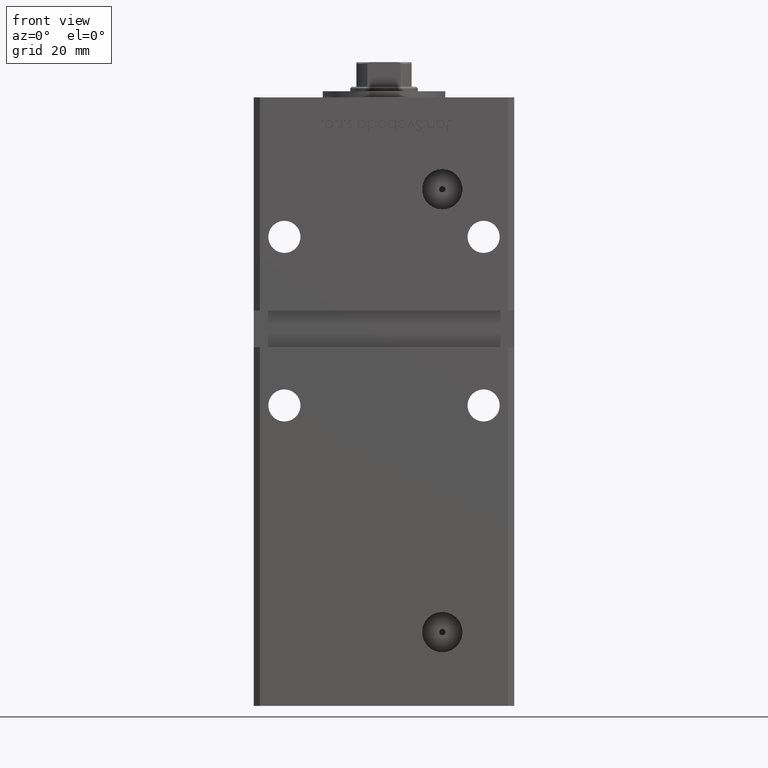
[diagram: clean part render]
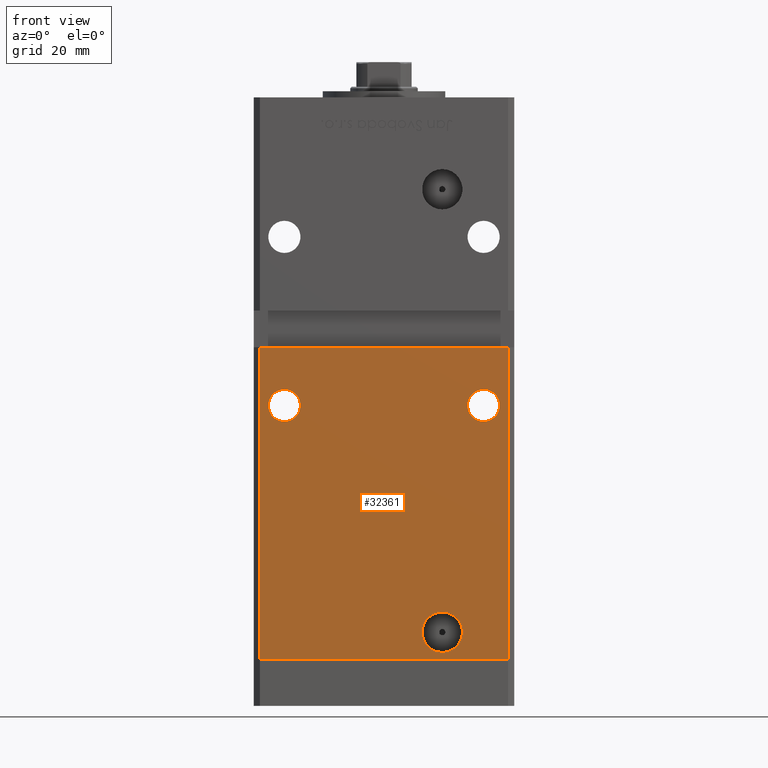
[diagram: same view with one face highlighted and labeled with its STEP entity id]
A machine part, front view. The second image highlights one B-rep face of the part: STEP entity #32361.
In plain terms, the highlighted planar face has unit normal (0, 1, 0).
Its self-contained STEP definition (entity closure, byte-faithful):
#87 = CIRCLE ( 'NONE', #46471, 5.250000000000004441 ) ;
#1092 = CARTESIAN_POINT ( 'NONE',  ( 32.50000000000000000, -37.50000000000000711, 83.00000000000001421 ) ) ;
#1167 = CIRCLE ( 'NONE', #5460, 6.579999999999998295 ) ;
#1610 = CARTESIAN_POINT ( 'NONE',  ( -32.50000000000000000, -37.50000000000000711, 83.00000000000001421 ) ) ;
#1747 = AXIS2_PLACEMENT_3D ( 'NONE', #1951, #30458, #33979 ) ;
#1770 = CIRCLE ( 'NONE', #29246, 5.249999999999991118 ) ;
#1951 = CARTESIAN_POINT ( 'NONE',  ( -32.50000000000000000, -37.50000000000000711, 83.00000000000001421 ) ) ;
#2108 = VERTEX_POINT ( 'NONE', #41853 ) ;
#2146 = DIRECTION ( 'NONE',  ( 1.000000000000000000, 0.000000000000000000, 0.000000000000000000 ) ) ;
#2401 = DIRECTION ( 'NONE',  ( 0.000000000000000000, -0.000000000000000000, 1.000000000000000000 ) ) ;
#2410 = CARTESIAN_POINT ( 'NONE',  ( -40.49999999999998579, -37.50000000000000711, 0.000000000000000000 ) ) ;
#2592 = CIRCLE ( 'NONE', #1747, 5.250000000000004441 ) ;
#2930 = EDGE_LOOP ( 'NONE', ( #29260, #29516 ) ) ;
#3488 = VECTOR ( 'NONE', #40048, 1000.000000000000000 ) ;
#3537 = DIRECTION ( 'NONE',  ( 0.000000000000000000, 0.000000000000000000, -1.000000000000000000 ) ) ;
#4321 = AXIS2_PLACEMENT_3D ( 'NONE', #51091, #27670, #2401 ) ;
#4773 = VERTEX_POINT ( 'NONE', #26086 ) ;
#5460 = AXIS2_PLACEMENT_3D ( 'NONE', #27991, #48980, #3537 ) ;
#6407 = VERTEX_POINT ( 'NONE', #46164 ) ;
#6418 = CARTESIAN_POINT ( 'NONE',  ( -40.49999999999998579, -37.50000000000000711, 0.000000000000000000 ) ) ;
#6759 = CARTESIAN_POINT ( 'NONE',  ( 32.50000000000000000, -37.50000000000000711, 88.25000000000001421 ) ) ;
#7535 = CARTESIAN_POINT ( 'NONE',  ( 40.49999999999998579, -37.50000000000000711, 0.000000000000000000 ) ) ;
#9054 = CARTESIAN_POINT ( 'NONE',  ( -32.50000000000000000, -37.50000000000000711, 77.75000000000001421 ) ) ;
#10476 = LINE ( 'NONE', #40060, #22931 ) ;
#10718 = ORIENTED_EDGE ( 'NONE', *, *, #18265, .T. ) ;
#10848 = EDGE_LOOP ( 'NONE', ( #49077, #27386 ) ) ;
#11515 = CARTESIAN_POINT ( 'NONE',  ( 40.49999999999998579, -37.50000000000000711, 168.5000000000000000 ) ) ;
#12383 = AXIS2_PLACEMENT_3D ( 'NONE', #34124, #33597, #50260 ) ;
#12639 = VECTOR ( 'NONE', #26746, 1000.000000000000000 ) ;
#12642 = ORIENTED_EDGE ( 'NONE', *, *, #23057, .F. ) ;
#13300 = VERTEX_POINT ( 'NONE', #33228 ) ;
#14692 = CIRCLE ( 'NONE', #18885, 6.579999999999998295 ) ;
#14919 = EDGE_CURVE ( 'NONE', #32019, #13300, #1770, .T. ) ;
#14929 = ORIENTED_EDGE ( 'NONE', *, *, #15067, .T. ) ;
#15067 = EDGE_CURVE ( 'NONE', #46323, #17349, #36021, .T. ) ;
#15109 = EDGE_CURVE ( 'NONE', #4773, #17349, #40577, .T. ) ;
#15830 = CIRCLE ( 'NONE', #12383, 5.249999999999991118 ) ;
#16616 = DIRECTION ( 'NONE',  ( -0.000000000000000000, -0.000000000000000000, -1.000000000000000000 ) ) ;
#17349 = VERTEX_POINT ( 'NONE', #7535 ) ;
#18265 = EDGE_CURVE ( 'NONE', #28333, #46323, #18942, .T. ) ;
#18885 = AXIS2_PLACEMENT_3D ( 'NONE', #37875, #38664, #45680 ) ;
#18942 = LINE ( 'NONE', #51508, #12639 ) ;
#22749 = ORIENTED_EDGE ( 'NONE', *, *, #46045, .F. ) ;
#22931 = VECTOR ( 'NONE', #2146, 1000.000000000000000 ) ;
#23057 = EDGE_CURVE ( 'NONE', #28333, #4773, #10476, .T. ) ;
#23099 = FACE_BOUND ( 'NONE', #2930, .T. ) ;
#26086 = CARTESIAN_POINT ( 'NONE',  ( 40.49999999999998579, -37.50000000000000711, 102.0000000000000142 ) ) ;
#26592 = EDGE_LOOP ( 'NONE', ( #31701, #12642, #10718, #14929 ) ) ;
#26746 = DIRECTION ( 'NONE',  ( -0.000000000000000000, -0.000000000000000000, -1.000000000000000000 ) ) ;
#27386 = ORIENTED_EDGE ( 'NONE', *, *, #34422, .T. ) ;
#27670 = DIRECTION ( 'NONE',  ( 0.000000000000000000, 1.000000000000000000, 0.000000000000000000 ) ) ;
#27991 = CARTESIAN_POINT ( 'NONE',  ( 18.99999999999998934, -37.50000000000000711, 9.000000000000007105 ) ) ;
#28333 = VERTEX_POINT ( 'NONE', #41757 ) ;
#29246 = AXIS2_PLACEMENT_3D ( 'NONE', #1092, #46777, #41709 ) ;
#29260 = ORIENTED_EDGE ( 'NONE', *, *, #14919, .T. ) ;
#29324 = VERTEX_POINT ( 'NONE', #9054 ) ;
#29516 = ORIENTED_EDGE ( 'NONE', *, *, #48437, .T. ) ;
#30403 = CARTESIAN_POINT ( 'NONE',  ( 18.99999999999998934, -37.50000000000000711, 2.420000000000009699 ) ) ;
#30458 = DIRECTION ( 'NONE',  ( 0.000000000000000000, 1.000000000000000000, 0.000000000000000000 ) ) ;
#31701 = ORIENTED_EDGE ( 'NONE', *, *, #15109, .F. ) ;
#31899 = EDGE_CURVE ( 'NONE', #6407, #29324, #2592, .T. ) ;
#32019 = VERTEX_POINT ( 'NONE', #6759 ) ;
#32361 = ADVANCED_FACE ( 'NONE', ( #52159, #23099, #35484, #51889 ), #39242, .F. ) ;
#33228 = CARTESIAN_POINT ( 'NONE',  ( 32.50000000000000000, -37.50000000000000711, 77.75000000000002842 ) ) ;
#33597 = DIRECTION ( 'NONE',  ( 0.000000000000000000, 1.000000000000000000, 0.000000000000000000 ) ) ;
#33979 = DIRECTION ( 'NONE',  ( 0.000000000000000000, 0.000000000000000000, 1.000000000000000000 ) ) ;
#34124 = CARTESIAN_POINT ( 'NONE',  ( 32.50000000000000000, -37.50000000000000711, 83.00000000000001421 ) ) ;
#34422 = EDGE_CURVE ( 'NONE', #29324, #6407, #87, .T. ) ;
#35140 = ORIENTED_EDGE ( 'NONE', *, *, #35765, .F. ) ;
#35484 = FACE_BOUND ( 'NONE', #48383, .T. ) ;
#35765 = EDGE_CURVE ( 'NONE', #2108, #43220, #14692, .T. ) ;
#36021 = LINE ( 'NONE', #6418, #3488 ) ;
#37875 = CARTESIAN_POINT ( 'NONE',  ( 18.99999999999998934, -37.50000000000000711, 9.000000000000007105 ) ) ;
#38194 = DIRECTION ( 'NONE',  ( 0.000000000000000000, 0.000000000000000000, 1.000000000000000000 ) ) ;
#38664 = DIRECTION ( 'NONE',  ( 0.000000000000000000, -1.000000000000000000, 0.000000000000000000 ) ) ;
#39242 = PLANE ( 'NONE',  #4321 ) ;
#40048 = DIRECTION ( 'NONE',  ( 1.000000000000000000, 0.000000000000000000, 0.000000000000000000 ) ) ;
#40060 = CARTESIAN_POINT ( 'NONE',  ( -42.49999999999998579, -37.50000000000000711, 102.0000000000000142 ) ) ;
#40577 = LINE ( 'NONE', #11515, #43004 ) ;
#41709 = DIRECTION ( 'NONE',  ( 0.000000000000000000, 0.000000000000000000, 1.000000000000000000 ) ) ;
#41757 = CARTESIAN_POINT ( 'NONE',  ( -40.49999999999998579, -37.50000000000000711, 102.0000000000000142 ) ) ;
#41853 = CARTESIAN_POINT ( 'NONE',  ( 18.99999999999998934, -37.50000000000000711, 15.58000000000000718 ) ) ;
#43004 = VECTOR ( 'NONE', #16616, 1000.000000000000000 ) ;
#43220 = VERTEX_POINT ( 'NONE', #30403 ) ;
#45680 = DIRECTION ( 'NONE',  ( 0.000000000000000000, 0.000000000000000000, -1.000000000000000000 ) ) ;
#46045 = EDGE_CURVE ( 'NONE', #43220, #2108, #1167, .T. ) ;
#46164 = CARTESIAN_POINT ( 'NONE',  ( -32.50000000000000000, -37.50000000000000711, 88.25000000000002842 ) ) ;
#46323 = VERTEX_POINT ( 'NONE', #2410 ) ;
#46471 = AXIS2_PLACEMENT_3D ( 'NONE', #1610, #50301, #38194 ) ;
#46777 = DIRECTION ( 'NONE',  ( 0.000000000000000000, 1.000000000000000000, 0.000000000000000000 ) ) ;
#48383 = EDGE_LOOP ( 'NONE', ( #22749, #35140 ) ) ;
#48437 = EDGE_CURVE ( 'NONE', #13300, #32019, #15830, .T. ) ;
#48980 = DIRECTION ( 'NONE',  ( 0.000000000000000000, -1.000000000000000000, 0.000000000000000000 ) ) ;
#49077 = ORIENTED_EDGE ( 'NONE', *, *, #31899, .T. ) ;
#50260 = DIRECTION ( 'NONE',  ( 0.000000000000000000, 0.000000000000000000, 1.000000000000000000 ) ) ;
#50301 = DIRECTION ( 'NONE',  ( 0.000000000000000000, 1.000000000000000000, 0.000000000000000000 ) ) ;
#51091 = CARTESIAN_POINT ( 'NONE',  ( -40.49999999999998579, -37.50000000000000711, 168.5000000000000000 ) ) ;
#51508 = CARTESIAN_POINT ( 'NONE',  ( -40.49999999999998579, -37.50000000000000711, 168.5000000000000000 ) ) ;
#51889 = FACE_OUTER_BOUND ( 'NONE', #26592, .T. ) ;
#52159 = FACE_BOUND ( 'NONE', #10848, .T. ) ;